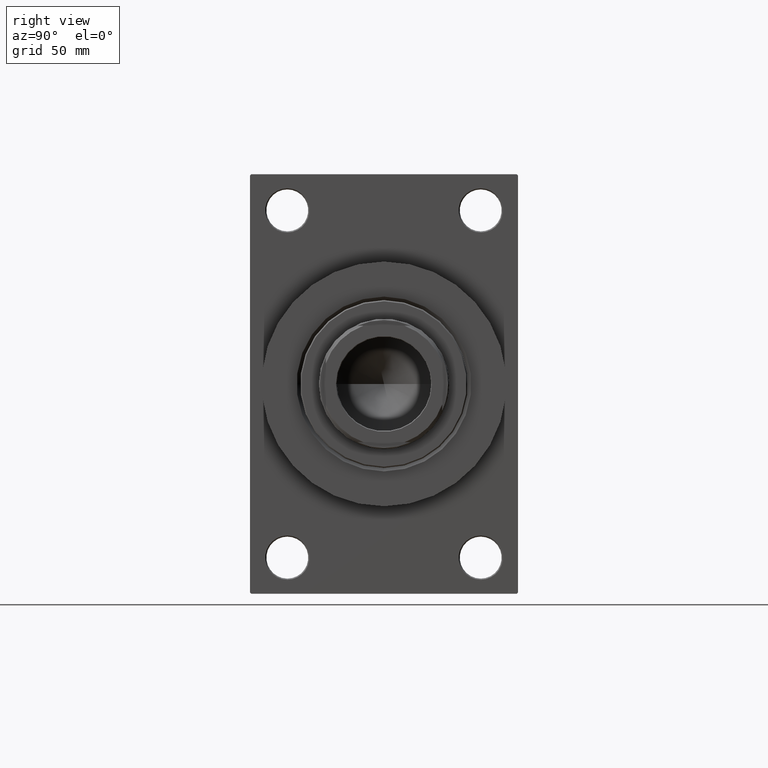
[diagram: clean part render]
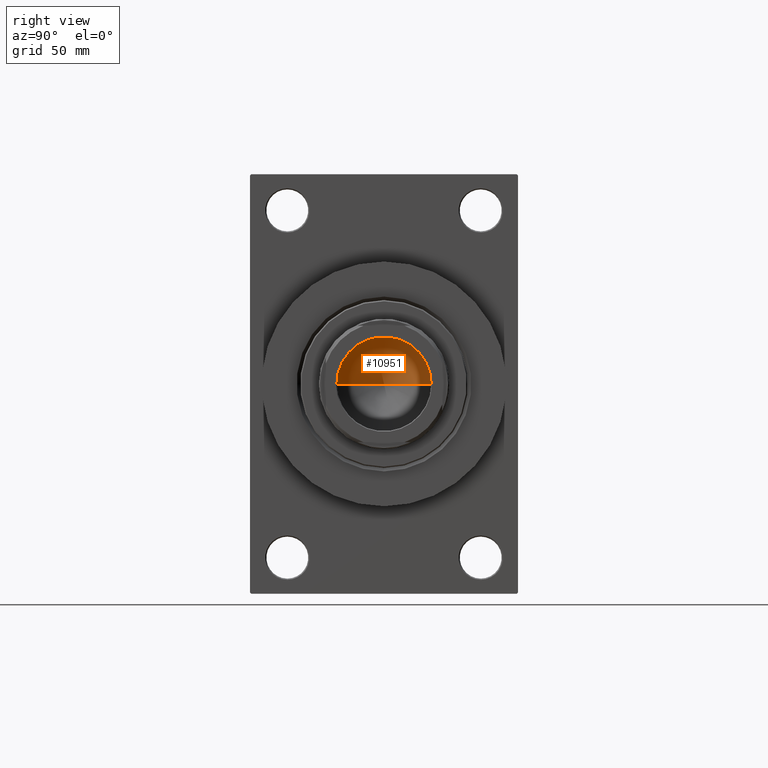
[diagram: same view with one face highlighted and labeled with its STEP entity id]
A machine part, right view. The second image highlights one B-rep face of the part: STEP entity #10951.
In plain terms, the highlighted conical surface has half-angle 59 deg.
Its self-contained STEP definition (entity closure, byte-faithful):
#619 = VECTOR ( 'NONE', #15429, 1000.000000000000000 ) ;
#1012 = CARTESIAN_POINT ( 'NONE',  ( -20.24999999999998934, 2.479909768273389117E-15, 105.0000000000000142 ) ) ;
#5751 = DIRECTION ( 'NONE',  ( -0.8571673007021115565, 1.049727191138617710E-16, 0.5150380749100554878 ) ) ;
#8807 = CIRCLE ( 'NONE', #23439, 20.24999999999998934 ) ;
#9586 = CARTESIAN_POINT ( 'NONE',  ( 0.000000000000000000, 0.000000000000000000, 105.0000000000000142 ) ) ;
#10951 = ADVANCED_FACE ( 'NONE', ( #27926 ), #42277, .F. ) ;
#11500 = AXIS2_PLACEMENT_3D ( 'NONE', #9586, #38328, #31084 ) ;
#15429 = DIRECTION ( 'NONE',  ( 0.8571673007021115565, 0.000000000000000000, 0.5150380749100554878 ) ) ;
#15664 = LINE ( 'NONE', #26047, #619 ) ;
#15747 = VERTEX_POINT ( 'NONE', #30918 ) ;
#16130 = ORIENTED_EDGE ( 'NONE', *, *, #24433, .F. ) ;
#17607 = DIRECTION ( 'NONE',  ( 1.000000000000000000, 0.000000000000000000, 0.000000000000000000 ) ) ;
#18884 = LINE ( 'NONE', #1012, #34859 ) ;
#23069 = ORIENTED_EDGE ( 'NONE', *, *, #33821, .T. ) ;
#23439 = AXIS2_PLACEMENT_3D ( 'NONE', #46576, #46810, #17607 ) ;
#24433 = EDGE_CURVE ( 'NONE', #28983, #32170, #15664, .T. ) ;
#26047 = CARTESIAN_POINT ( 'NONE',  ( 20.24999999999998934, 0.000000000000000000, 105.0000000000000142 ) ) ;
#27926 = FACE_OUTER_BOUND ( 'NONE', #37877, .T. ) ;
#28983 = VERTEX_POINT ( 'NONE', #38958 ) ;
#30918 = CARTESIAN_POINT ( 'NONE',  ( -20.24999999999998934, 2.479909768273389117E-15, 105.0000000000000142 ) ) ;
#31084 = DIRECTION ( 'NONE',  ( 1.000000000000000000, 0.000000000000000000, 0.000000000000000000 ) ) ;
#32170 = VERTEX_POINT ( 'NONE', #46577 ) ;
#33821 = EDGE_CURVE ( 'NONE', #28983, #15747, #18884, .T. ) ;
#34859 = VECTOR ( 'NONE', #5751, 1000.000000000000000 ) ;
#35387 = ORIENTED_EDGE ( 'NONE', *, *, #42951, .T. ) ;
#37877 = EDGE_LOOP ( 'NONE', ( #16130, #23069, #35387 ) ) ;
#38328 = DIRECTION ( 'NONE',  ( -0.000000000000000000, -0.000000000000000000, 1.000000000000000000 ) ) ;
#38958 = CARTESIAN_POINT ( 'NONE',  ( -1.584115414415908206E-14, 0.000000000000000000, 92.83257246469187862 ) ) ;
#42277 = CONICAL_SURFACE ( 'NONE', #11500, 20.24999999999998934, 1.029744258676652979 ) ;
#42951 = EDGE_CURVE ( 'NONE', #15747, #32170, #8807, .T. ) ;
#46576 = CARTESIAN_POINT ( 'NONE',  ( 0.000000000000000000, 0.000000000000000000, 105.0000000000000142 ) ) ;
#46577 = CARTESIAN_POINT ( 'NONE',  ( 20.24999999999998934, 0.000000000000000000, 105.0000000000000142 ) ) ;
#46810 = DIRECTION ( 'NONE',  ( -0.000000000000000000, -0.000000000000000000, 1.000000000000000000 ) ) ;